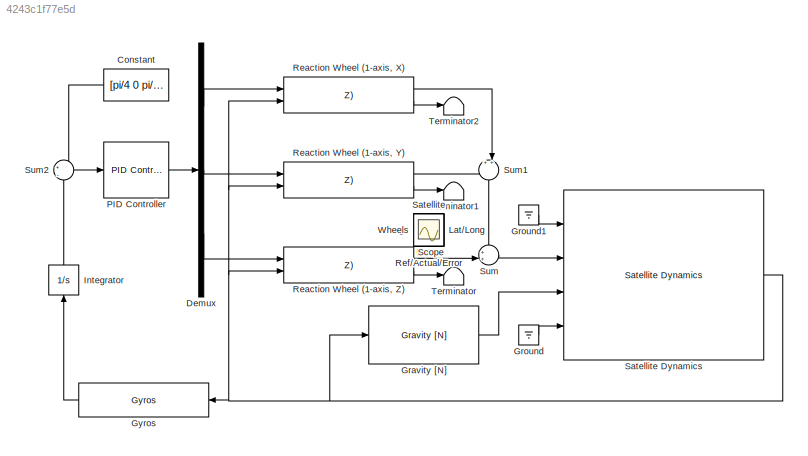
MODEL slx_4243c1f77e5d
KIND model
CONFIG AbsTol = auto
CONFIG EnableMultiTasking = off
CONFIG FixedStep = 0.1
CONFIG MaxStep = auto
CONFIG MinStep = auto
CONFIG RelTol = 1e-3
CONFIG SampleTimeConstraint = Unconstrained
CONFIG Solver = ode14x
CONFIG SolverName = ode14x
CONFIG StartTime = 0.0
CONFIG StopTime = 300
BLOCK [Reference]  Satellite Dynamics   REF=scars_library/Standard/ Satellite Dynamics   (lib defined in slx_0992aaab4a30)
  Ports = [4, 1]
  SourceBlock = scars_library/Standard/ Satellite Dynamics
  SourceType = Sattellite Dynamics
BLOCK [Constant] Constant
  Value = [pi/4 0 pi/8]
BLOCK [Demux] Demux
  DisplayOption = bar
  Outputs = 3
  Ports = [1, 3]
BLOCK [Reference] Gravity [N]  REF=scars_library/Environment/Gravity [N]  (lib defined in slx_0992aaab4a30)
  Ports = [1, 1]
  SourceBlock = scars_library/Environment/Gravity [N]
  SourceType = Gravity
BLOCK [Ground] Ground
BLOCK [Ground] Ground1
BLOCK [Reference] Gyros  REF=scars_library/Sensors/Gyros  (lib defined in slx_0992aaab4a30)
  Ports = [1, 1]
  SourceBlock = scars_library/Sensors/Gyros
BLOCK [Integrator] Integrator
  InitialCondition = [0.76 2.32 1.71]
  Ports = [1, 1]
BLOCK [Scope] Lat//Long
  Floating = off
  IOType = viewer
  NumInputPorts = 1
  Ports = []
  ScopeSpecificationString = Simulink.scopes.TimeScopeBlockCfg('CurrentConfiguration', extmgr.ConfigurationSet(extmgr.Configuration('Core','General UI',true),extmgr.Configuration('Core','Source UI',true),extmgr.Configuration('Sources','WiredSimulink',true,'DataLoggingVariableName','ScopeData4'),extmgr.Configuration('Visuals','Time Domain',true,'SerializedDisplays',{struct('MinYLimReal','-47301.70768','MaxYLimReal','425815.439...<+1841ch>
BLOCK [Scope] Omega
  Floating = off
  IOType = viewer
  NumInputPorts = 1
  Ports = []
  ScopeSpecificationString = Simulink.scopes.TimeScopeBlockCfg('CurrentConfiguration', extmgr.ConfigurationSet(extmgr.Configuration('Core','General UI',true),extmgr.Configuration('Core','Source UI',true),extmgr.Configuration('Sources','WiredSimulink',true,'DataLoggingVariableName','ScopeData1'),extmgr.Configuration('Visuals','Time Domain',true,'SerializedDisplays',{struct('MinYLimReal','-0.0482','MaxYLimReal','0.01737','YLabe...<+1599ch>
BLOCK [Reference] PID Controller  REF=scars_library/ Control Algorithms /PID Controller  (lib defined in slx_0992aaab4a30)
  Ports = [1, 1]
  SourceBlock = scars_library/ Control Algorithms /PID Controller
BLOCK [Scope] RW Y
  Floating = off
  IOType = viewer
  NumInputPorts = 1
  Ports = []
  ScopeSpecificationString = Simulink.scopes.TimeScopeBlockCfg('CurrentConfiguration', extmgr.ConfigurationSet(extmgr.Configuration('Core','General UI',true),extmgr.Configuration('Core','Source UI',true),extmgr.Configuration('Sources','WiredSimulink',true,'DataLoggingVariableName','ScopeData1'),extmgr.Configuration('Visuals','Time Domain',true,'SerializedDisplays',{struct('MinYLimReal','-7960.36223','MaxYLimReal','10897.87701...<+4827ch>
BLOCK [Reference] Reaction Wheel (1-axis, X)  REF=scars_library/Actuators/Reaction Wheel (1-axis, X//Y//Z)  (lib defined in slx_0992aaab4a30)
  Ports = [2, 2]
  SourceBlock = scars_library/Actuators/Reaction Wheel (1-axis, X//Y//Z)
BLOCK [Reference] Reaction Wheel (1-axis, Y)  REF=scars_library/Actuators/Reaction Wheel (1-axis, X//Y//Z)  (lib defined in slx_0992aaab4a30)
  Ports = [2, 2]
  SourceBlock = scars_library/Actuators/Reaction Wheel (1-axis, X//Y//Z)
BLOCK [Reference] Reaction Wheel (1-axis, Z)  REF=scars_library/Actuators/Reaction Wheel (1-axis, X//Y//Z)  (lib defined in slx_0992aaab4a30)
  Ports = [2, 2]
  SourceBlock = scars_library/Actuators/Reaction Wheel (1-axis, X//Y//Z)
BLOCK [Scope] Ref//Actual//Error
  Floating = off
  IOType = viewer
  NumInputPorts = 1
  Ports = []
  ScopeSpecificationString = Simulink.scopes.TimeScopeBlockCfg('CurrentConfiguration', extmgr.ConfigurationSet(extmgr.Configuration('Core','General UI',true),extmgr.Configuration('Core','Source UI',true),extmgr.Configuration('Sources','WiredSimulink',true,'DataLoggingVariableName','ScopeData3'),extmgr.Configuration('Visuals','Time Domain',true,'SerializedDisplays',{struct('MinYLimReal','0.57738','MaxYLimReal','2.56463','YLabe...<+2817ch>
BLOCK [Scope] Satellite
  Floating = off
  IOType = viewer
  NumInputPorts = 1
  Ports = []
  ScopeSpecificationString = Simulink.scopes.TimeScopeBlockCfg('CurrentConfiguration', extmgr.ConfigurationSet(extmgr.Configuration('Core','General UI',true),extmgr.Configuration('Core','Source UI',true),extmgr.Configuration('Sources','WiredSimulink',true),extmgr.Configuration('Visuals','Time Domain',true,'SerializedDisplays',{struct('MinYLimReal','-3.92592','MaxYLimReal','3.92619','YLabelReal','','MinYLimMag','0.00000','MaxY...<+3750ch>
BLOCK [Scope] Scope
  Floating = off
  IOType = viewer
  NumInputPorts = 1
  Ports = []
  ScopeSpecificationString = Simulink.scopes.TimeScopeBlockCfg('CurrentConfiguration', extmgr.ConfigurationSet(extmgr.Configuration('Core','General UI',true),extmgr.Configuration('Core','Source UI',true),extmgr.Configuration('Sources','WiredSimulink',true,'DataLoggingVariableName','ScopeData2'),extmgr.Configuration('Visuals','Time Domain',true,'SerializedDisplays',{struct('MinYLimReal','-8033.55331','MaxYLimReal','11556.59673...<+1491ch>
BLOCK [Sum] Sum
  IconShape = round
  InputSameDT = off
  Inputs = ++|
  OutDataTypeStr = Inherit: Inherit via internal rule
  Ports = [2, 1]
  SaturateOnIntegerOverflow = off
BLOCK [Sum] Sum1
  IconShape = round
  InputSameDT = off
  Inputs = ++|
  OutDataTypeStr = Inherit: Inherit via internal rule
  Ports = [2, 1]
  SaturateOnIntegerOverflow = off
BLOCK [Sum] Sum2
  IconShape = round
  InputSameDT = off
  Inputs = +|-
  OutDataTypeStr = Inherit: Inherit via internal rule
  Ports = [2, 1]
  SaturateOnIntegerOverflow = off
BLOCK [Terminator] Terminator
BLOCK [Terminator] Terminator1
BLOCK [Terminator] Terminator2
BLOCK [Scope] Wheels
  Floating = off
  IOType = viewer
  NumInputPorts = 1
  Ports = []
  ScopeSpecificationString = Simulink.scopes.TimeScopeBlockCfg('CurrentConfiguration', extmgr.ConfigurationSet(extmgr.Configuration('Core','General UI',true),extmgr.Configuration('Core','Source UI',true),extmgr.Configuration('Sources','WiredSimulink',true,'DataLoggingVariableName','ScopeData1'),extmgr.Configuration('Visuals','Time Domain',true,'SerializedDisplays',{struct('MinYLimReal','-0.00187','MaxYLimReal','0.00187','YLab...<+3923ch>
NET  Satellite Dynamics :1 -> Gravity [N]:1, Gyros:1, Reaction Wheel (1-axis, X):2, Reaction Wheel (1-axis, Y):2, Reaction Wheel (1-axis, Z):2
LINE Constant:1 -> Sum2:1
LINE Demux:1 -> Reaction Wheel (1-axis, X):1
LINE Demux:2 -> Reaction Wheel (1-axis, Y):1
LINE Demux:3 -> Reaction Wheel (1-axis, Z):1
LINE Gravity [N]:1 ->  Satellite Dynamics :3
LINE Ground1:1 ->  Satellite Dynamics :1
LINE Ground:1 ->  Satellite Dynamics :4
LINE Gyros:1 -> Integrator:1
LINE Integrator:1 -> Sum2:2
LINE PID Controller:1 -> Demux:1
LINE Reaction Wheel (1-axis, X):1 -> Sum1:2
LINE Reaction Wheel (1-axis, X):2 -> Terminator2:1
LINE Reaction Wheel (1-axis, Y):1 -> Sum1:1
LINE Reaction Wheel (1-axis, Y):2 -> Terminator1:1
LINE Reaction Wheel (1-axis, Z):1 -> Sum:2
LINE Reaction Wheel (1-axis, Z):2 -> Terminator:1
LINE Sum1:1 -> Sum:1
LINE Sum2:1 -> PID Controller:1
LINE Sum:1 ->  Satellite Dynamics :2
note: NET lines group one-source signal fan-out (src -> all destinations, sorted); 1:1 wires keep LINE
